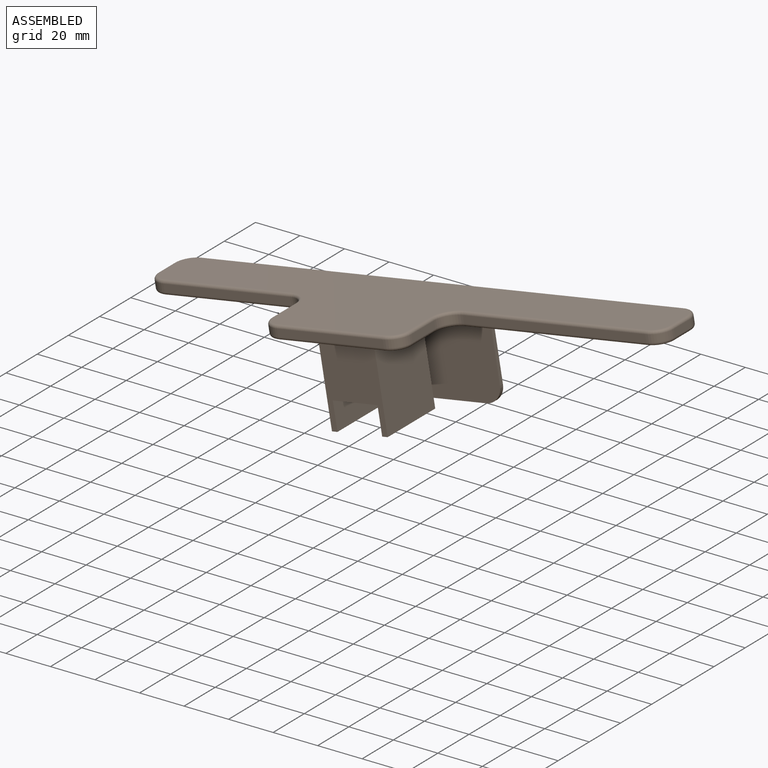
[diagram: assembled view]
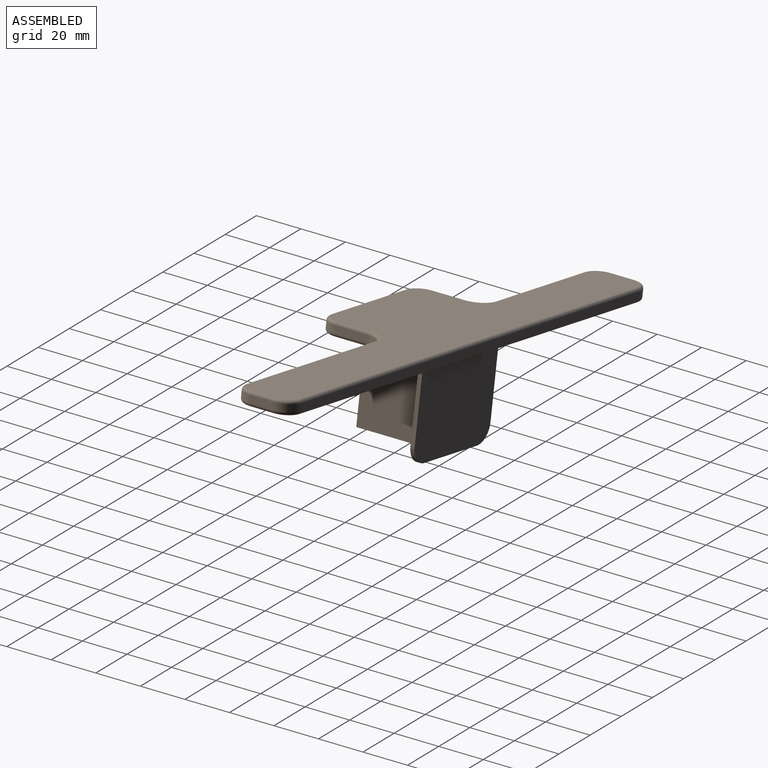
[diagram: assembled view, second angle]
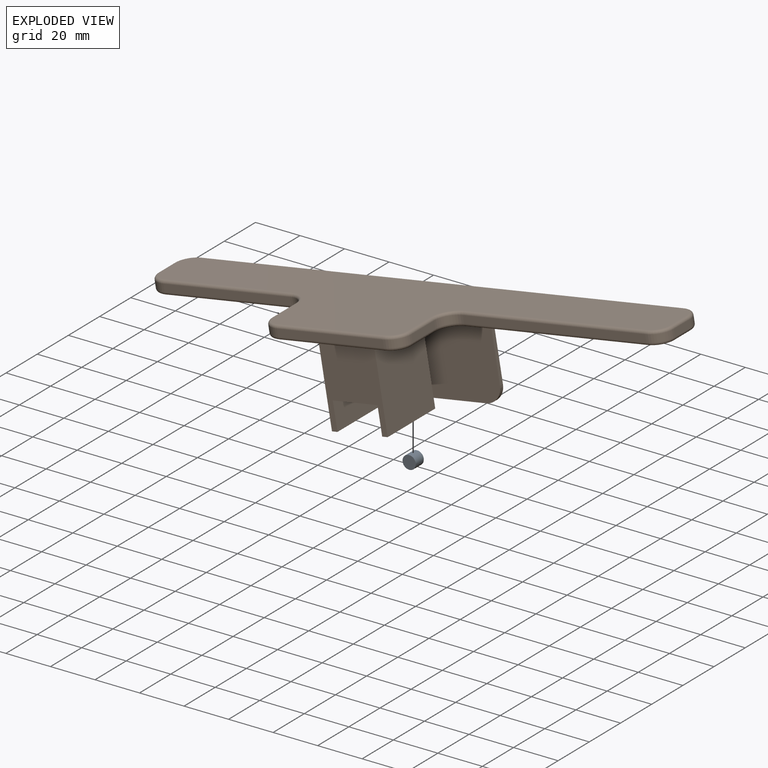
[diagram: exploded view]
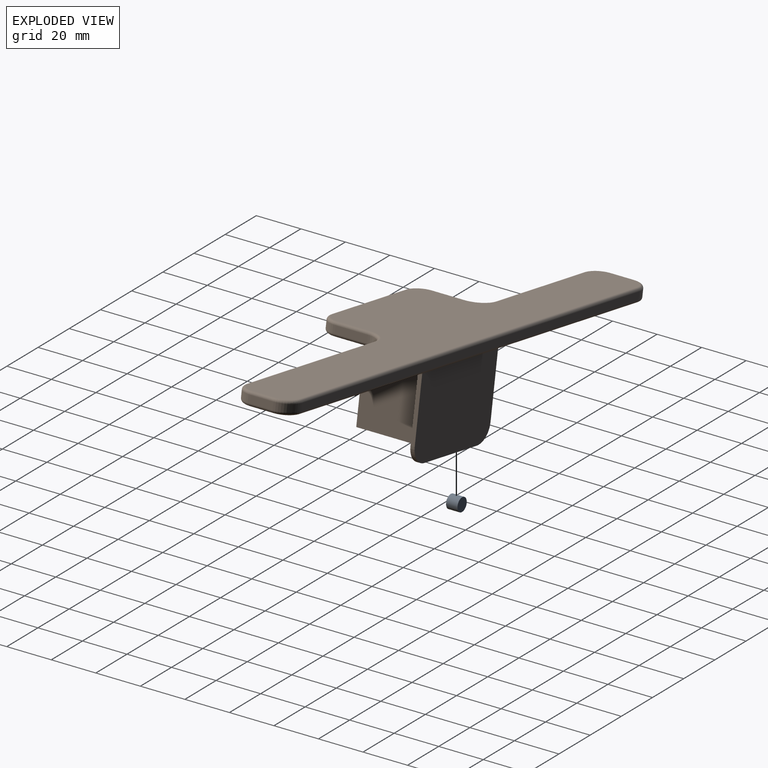
[diagram: exploded view, second angle]
ASSEMBLY  parts=2 mates=2
PART A: 3 faces, bbox 6x6x5.1 mm
  f0: cylinder r=2.98mm len=5.97mm, axis (0,0,-1), area 96.2mm2, adj f1,f2
  f1: plane 5.97x5.97mm, normal (0,0,1), area 28mm2, adj f0
  f2: plane 5.97x5.97mm, normal (0,0,-1), area 28mm2, adj f0
PART B: 78 faces, bbox 236.2x56.5x43.9 mm
  f0: plane 232.41x52.73mm, normal (0,0,1), area 4593.8mm2, adj f6,f7,f8,f9,f53,f54,f55,f56
  f1: plane 10.16x3.3mm, normal (-1,0,0), area 33.5mm2, adj f29,f35,f49,f65
  f2: plane 48.26x3.3mm, normal (0,1,0), area 159.4mm2, adj f30,f31,f44,f60
  f3: plane 232.41x52.73mm, normal (0,0,-1), area 7115.8mm2, adj f37,f38,f39,f40,f41,f42,f43,f44
  f4: plane 219.71x3.3mm, normal (0,-1,0), area 725.5mm2, adj f35,f36,f45,f61
  f5: plane 10.16x3.3mm, normal (1,0,0), area 33.5mm2, adj f32,f36,f41,f57
  f6: plane 228.6x4.57mm, normal (0,-1,0), area 1045.2mm2, adj f0,f7,f9,f10
  f7: plane 4.57x4.47mm, normal (1,0,0), area 20.4mm2, adj f0,f6,f8,f10
  f8: plane 228.6x42.67mm, normal (0,1,0), area 2903.4mm2, adj f0,f7,f9,f10,f21,f22,f24,f73
  f9: plane 4.57x4.47mm, normal (-1,0,0), area 20.4mm2, adj f0,f6,f8,f10
  f10: plane 228.6x4.47mm, normal (0,0,1), area 1021.9mm2, adj f6,f7,f8,f9
  f11: plane 34.29x30.48mm, normal (1,0,0), area 1045.2mm2, adj f12,f14,f15,f69
  f12: plane 34.29x25.4mm, normal (0,1,0), area 618.5mm2, adj f11,f13,f15,f18,f19,f20,f71
  f13: plane 34.29x30.48mm, normal (-1,0,0), area 1045.2mm2, adj f12,f14,f15,f72
  f14: plane 34.29x25.4mm, normal (0,-1,0), area 840.6mm2, adj f11,f13,f15,f16,f70
  f15: plane 30.48x25.4mm, normal (0,0,1), area 218mm2, adj f11,f12,f13,f14,f17,f18,f19
  f16: cylinder r=3.11mm len=6.22mm, axis (0,-1,0), area 62.1mm2, adj f14,f17
  f17: plane 20.37x12.4mm, normal (0,1,0), area 222.1mm2, adj f15,f16,f18,f19,f20
  f18: plane 27.31x12.4mm, normal (-1,0,0), area 338.5mm2, adj f12,f15,f17,f20
  f19: plane 27.31x12.4mm, normal (1,0,0), area 338.5mm2, adj f12,f15,f17,f20
  f20: plane 27.31x20.37mm, normal (0,0,1), area 556.2mm2, adj f12,f17,f18,f19
  f21: plane 27.94x1.91mm, normal (1,0,0), area 53.2mm2, adj f8,f23,f73,f77
  f22: plane 27.94x1.91mm, normal (-1,0,0), area 53.2mm2, adj f8,f23,f75,f76
  f23: plane 49.36x35.56mm, normal (0,-1,0), area 1730.2mm2, adj f21,f22,f24,f74,f76,f77
  f24: plane 34.12x1.91mm, normal (0,0,1), area 65mm2, adj f8,f23,f76,f77
  f25: plane 14.63x3.3mm, normal (1,0,0), area 48.3mm2, adj f31,f33,f40,f56
  f26: plane 83.19x3.3mm, normal (0,1,0), area 274.7mm2, adj f32,f33,f37,f53
  f27: plane 57.79x3.3mm, normal (0,1,0), area 190.8mm2, adj f29,f34,f52,f68
  f28: plane 14.63x3.3mm, normal (-1,0,0), area 48.3mm2, adj f30,f34,f48,f64
  f29: cylinder r=7.62mm len=7.62mm, axis (0,0,-1), area 39.5mm2, adj f1,f27,f51,f67
  f30: cylinder r=7.62mm len=7.62mm, axis (0,0,1), area 39.5mm2, adj f2,f28,f46,f62
  f31: cylinder r=7.62mm len=7.62mm, axis (0,0,-1), area 39.5mm2, adj f2,f25,f42,f58
  f32: cylinder r=7.62mm len=7.62mm, axis (0,0,1), area 39.5mm2, adj f5,f26,f39,f55
  f33: cylinder r=7.62mm len=7.62mm, axis (0,0,1), area 39.5mm2, adj f25,f26,f38,f54
  f34: cylinder r=7.62mm len=7.62mm, axis (0,0,1), area 39.5mm2, adj f27,f28,f50,f66
  f35: cylinder r=7.62mm len=7.62mm, axis (0,0,-1), area 39.5mm2, adj f1,f4,f47,f63
  f36: cylinder r=7.62mm len=7.62mm, axis (0,0,1), area 39.5mm2, adj f4,f5,f43,f59
  f37: cylinder r=1.27mm len=83.19mm, axis (1,0,0), area 165.9mm2, adj f3,f26,f38,f39
  f38: torus R=8.89mm, axis (0,0,1), area 25.3mm2, adj f3,f33,f37,f40
  f39: torus R=6.35mm, axis (0,0,1), area 22.4mm2, adj f3,f32,f37,f41
  f40: cylinder r=1.27mm len=14.63mm, axis (0,-1,0), area 29.2mm2, adj f3,f25,f38,f42
  f41: cylinder r=1.27mm len=10.16mm, axis (0,1,0), area 20.3mm2, adj f3,f5,f39,f43
  f42: torus R=6.35mm, axis (0,0,1), area 22.4mm2, adj f3,f31,f40,f44
  f43: torus R=6.35mm, axis (0,0,1), area 22.4mm2, adj f3,f36,f41,f45
  f44: cylinder r=1.27mm len=48.26mm, axis (-1,0,0), area 96.3mm2, adj f2,f3,f42,f46
  f45: cylinder r=1.27mm len=219.71mm, axis (1,0,0), area 438.3mm2, adj f3,f4,f43,f47
  f46: torus R=6.35mm, axis (0,0,1), area 22.4mm2, adj f3,f30,f44,f48
  f47: torus R=6.35mm, axis (0,0,1), area 22.4mm2, adj f3,f35,f45,f49
  f48: cylinder r=1.27mm len=14.63mm, axis (0,1,0), area 29.2mm2, adj f3,f28,f46,f50
  f49: cylinder r=1.27mm len=10.16mm, axis (0,-1,0), area 20.3mm2, adj f1,f3,f47,f51
  f50: torus R=8.89mm, axis (0,0,1), area 25.3mm2, adj f3,f34,f48,f52
  f51: torus R=6.35mm, axis (0,0,1), area 22.4mm2, adj f3,f29,f49,f52
  f52: cylinder r=1.27mm len=57.79mm, axis (1,0,0), area 115.3mm2, adj f3,f27,f50,f51
  f53: cylinder r=1.27mm len=83.19mm, axis (-1,0,0), area 165.9mm2, adj f0,f26,f54,f55
  f54: torus R=8.89mm, axis (0,0,1), area 25.3mm2, adj f0,f33,f53,f56
  f55: torus R=6.35mm, axis (0,0,1), area 22.4mm2, adj f0,f32,f53,f57
  f56: cylinder r=1.27mm len=14.63mm, axis (0,1,0), area 29.2mm2, adj f0,f25,f54,f58
  f57: cylinder r=1.27mm len=10.16mm, axis (0,-1,0), area 20.3mm2, adj f0,f5,f55,f59
  f58: torus R=6.35mm, axis (0,0,1), area 22.4mm2, adj f0,f31,f56,f60
  f59: torus R=6.35mm, axis (0,0,1), area 22.4mm2, adj f0,f36,f57,f61
  f60: cylinder r=1.27mm len=48.26mm, axis (1,0,0), area 96.3mm2, adj f0,f2,f58,f62
  f61: cylinder r=1.27mm len=219.71mm, axis (-1,0,0), area 438.3mm2, adj f0,f4,f59,f63
  f62: torus R=6.35mm, axis (0,0,1), area 22.4mm2, adj f0,f30,f60,f64
  f63: torus R=6.35mm, axis (0,0,1), area 22.4mm2, adj f0,f35,f61,f65
  f64: cylinder r=1.27mm len=14.63mm, axis (0,-1,0), area 29.2mm2, adj f0,f28,f62,f66
  f65: cylinder r=1.27mm len=10.16mm, axis (0,1,0), area 20.3mm2, adj f0,f1,f63,f67
  f66: torus R=8.89mm, axis (0,0,1), area 25.3mm2, adj f0,f34,f64,f68
  f67: torus R=6.35mm, axis (0,0,1), area 22.4mm2, adj f0,f29,f65,f68
  f68: cylinder r=1.27mm len=57.79mm, axis (-1,0,0), area 115.3mm2, adj f0,f27,f66,f67
  f69: cylinder r=3.81mm len=38.1mm, axis (0,1,0), area 199mm2, adj f0,f11,f70,f71
  f70: cylinder r=3.81mm len=33.02mm, axis (1,0,0), area 168.6mm2, adj f0,f14,f69,f72
  f71: cylinder r=3.81mm len=33.02mm, axis (-1,0,0), area 168.6mm2, adj f0,f12,f69,f72
  f72: cylinder r=3.81mm len=38.1mm, axis (0,-1,0), area 199mm2, adj f0,f13,f70,f71
  f73: cylinder r=2.54mm len=4.45mm, axis (0,1,0), area 11.3mm2, adj f0,f8,f21,f74
  f74: cylinder r=2.54mm len=54.44mm, axis (1,0,0), area 204.3mm2, adj f0,f23,f73,f75
  f75: cylinder r=2.54mm len=4.45mm, axis (0,-1,0), area 11.3mm2, adj f0,f8,f22,f74
  f76: cylinder r=7.62mm len=7.62mm, axis (0,1,0), area 22.8mm2, adj f8,f22,f23,f24
  f77: cylinder r=7.62mm len=7.62mm, axis (0,-1,0), area 22.8mm2, adj f8,f21,f23,f24
PLACE A rot(axis=(0.51,-0.61,0.61),125.8deg) t=(-11.35,74.61,88.03)mm
PLACE B rot(axis=(-1,0,-0.09),180deg) t=(-75.32,70.16,-3.3)mm
MATE cylindrical B.f16 <-> A.f0  axis (0,1,0) through (34.45,65.37,-23.26)mm
MATE planar B.f16 <-> A.f0  axis (0,-1,0) through (34.45,63.78,-23.26)mm
